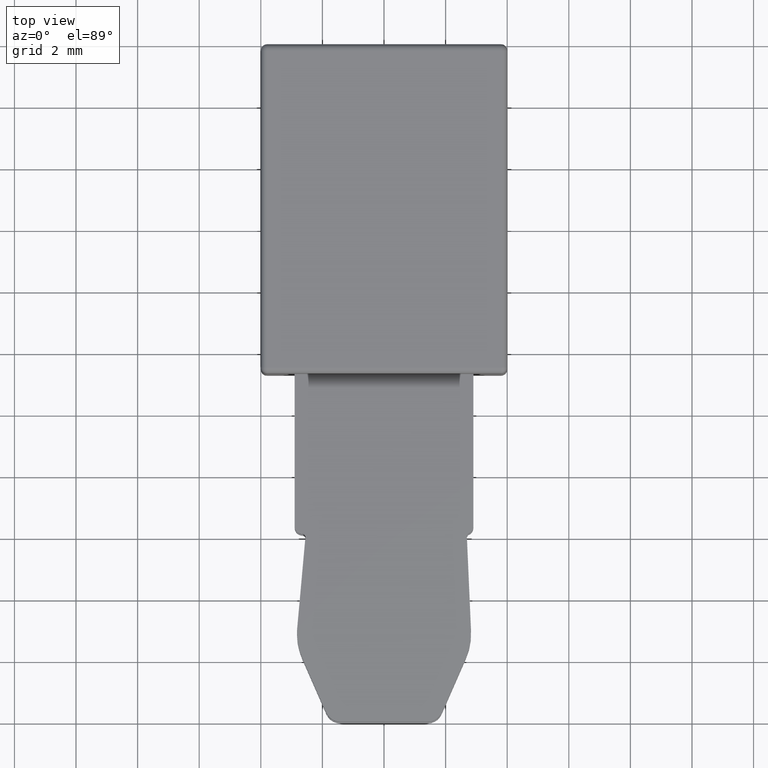
[diagram: clean part render]
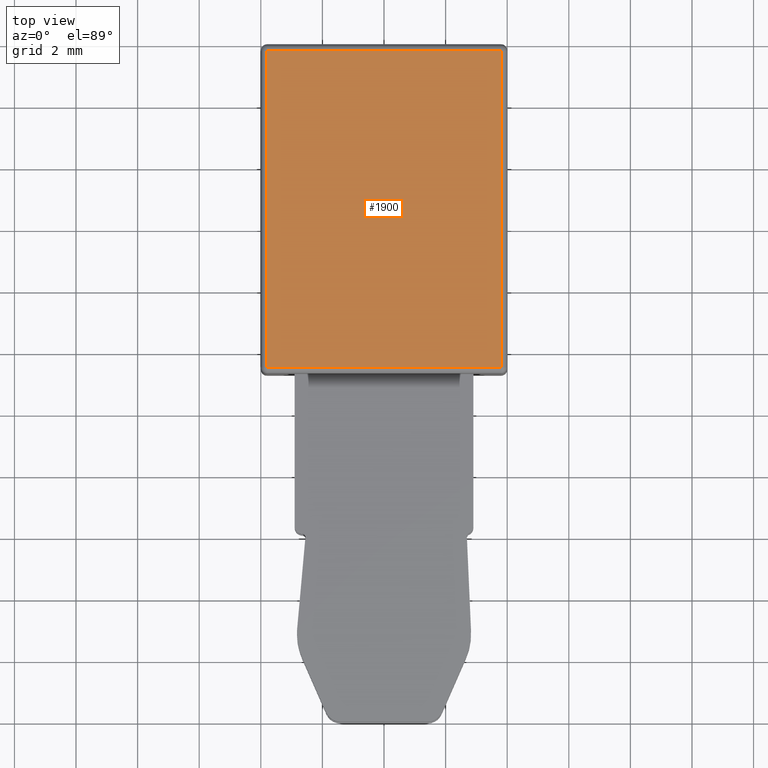
[diagram: same view with one face highlighted and labeled with its STEP entity id]
A machine part, top view. The second image highlights one B-rep face of the part: STEP entity #1900.
In plain terms, the highlighted planar face has unit normal (0, 0, 1).
Its self-contained STEP definition (entity closure, byte-faithful):
#105=DIRECTION('',(0.E0,1.E0,-3.080198447964E-11));
#106=VECTOR('',#105,1.030000000003E1);
#107=CARTESIAN_POINT('',(-3.799999998555E0,1.504499867030E0,1.999999999919E0));
#108=LINE('',#107,#106);
#128=DIRECTION('',(1.E0,-2.490265304518E-11,0.E0));
#129=VECTOR('',#128,7.599999998140E0);
#130=CARTESIAN_POINT('',(-3.799999998555E0,1.180449986706E1,1.999999999602E0));
#131=LINE('',#130,#129);
#312=DIRECTION('',(0.E0,-1.E0,3.080196292198E-11));
#313=VECTOR('',#312,1.030000000001E1);
#314=CARTESIAN_POINT('',(3.799999999585E0,1.180449986687E1,1.999999999602E0));
#315=LINE('',#314,#313);
#400=DIRECTION('',(-1.E0,2.203003861745E-11,0.E0));
#401=VECTOR('',#400,7.599999998140E0);
#402=CARTESIAN_POINT('',(3.799999999585E0,1.504499866863E0,1.999999999919E0));
#403=LINE('',#402,#401);
#1127=CARTESIAN_POINT('',(3.800000000195E0,1.504499866760E0,2.000000000448E0));
#1129=VERTEX_POINT('',#1127);
#1145=CARTESIAN_POINT('',(-3.799999998555E0,1.180449986706E1,1.999999999602E0));
#1146=CARTESIAN_POINT('',(3.799999999585E0,1.180449986687E1,1.999999999602E0));
#1147=VERTEX_POINT('',#1145);
#1148=VERTEX_POINT('',#1146);
#1211=CARTESIAN_POINT('',(-3.799999998555E0,1.504499867030E0,1.999999999919E0));
#1212=VERTEX_POINT('',#1211);
#1889=CARTESIAN_POINT('',(1.414288892207E0,-9.495500131606E0,2.E0));
#1890=DIRECTION('',(0.E0,0.E0,1.E0));
#1891=DIRECTION('',(1.E0,0.E0,0.E0));
#1892=AXIS2_PLACEMENT_3D('',#1889,#1890,#1891);
#1893=PLANE('',#1892);
#1894=ORIENTED_EDGE('',*,*,#1466,.T.);
#1895=ORIENTED_EDGE('',*,*,#1771,.T.);
#1896=ORIENTED_EDGE('',*,*,#1881,.T.);
#1897=ORIENTED_EDGE('',*,*,#1439,.T.);
#1898=EDGE_LOOP('',(#1894,#1895,#1896,#1897));
#1899=FACE_OUTER_BOUND('',#1898,.F.);
#1900=ADVANCED_FACE('',(#1899),#1893,.T.);
#1439=EDGE_CURVE('',#1212,#1147,#108,.T.);
#1466=EDGE_CURVE('',#1147,#1148,#131,.T.);
#1771=EDGE_CURVE('',#1148,#1129,#315,.T.);
#1881=EDGE_CURVE('',#1129,#1212,#403,.T.);